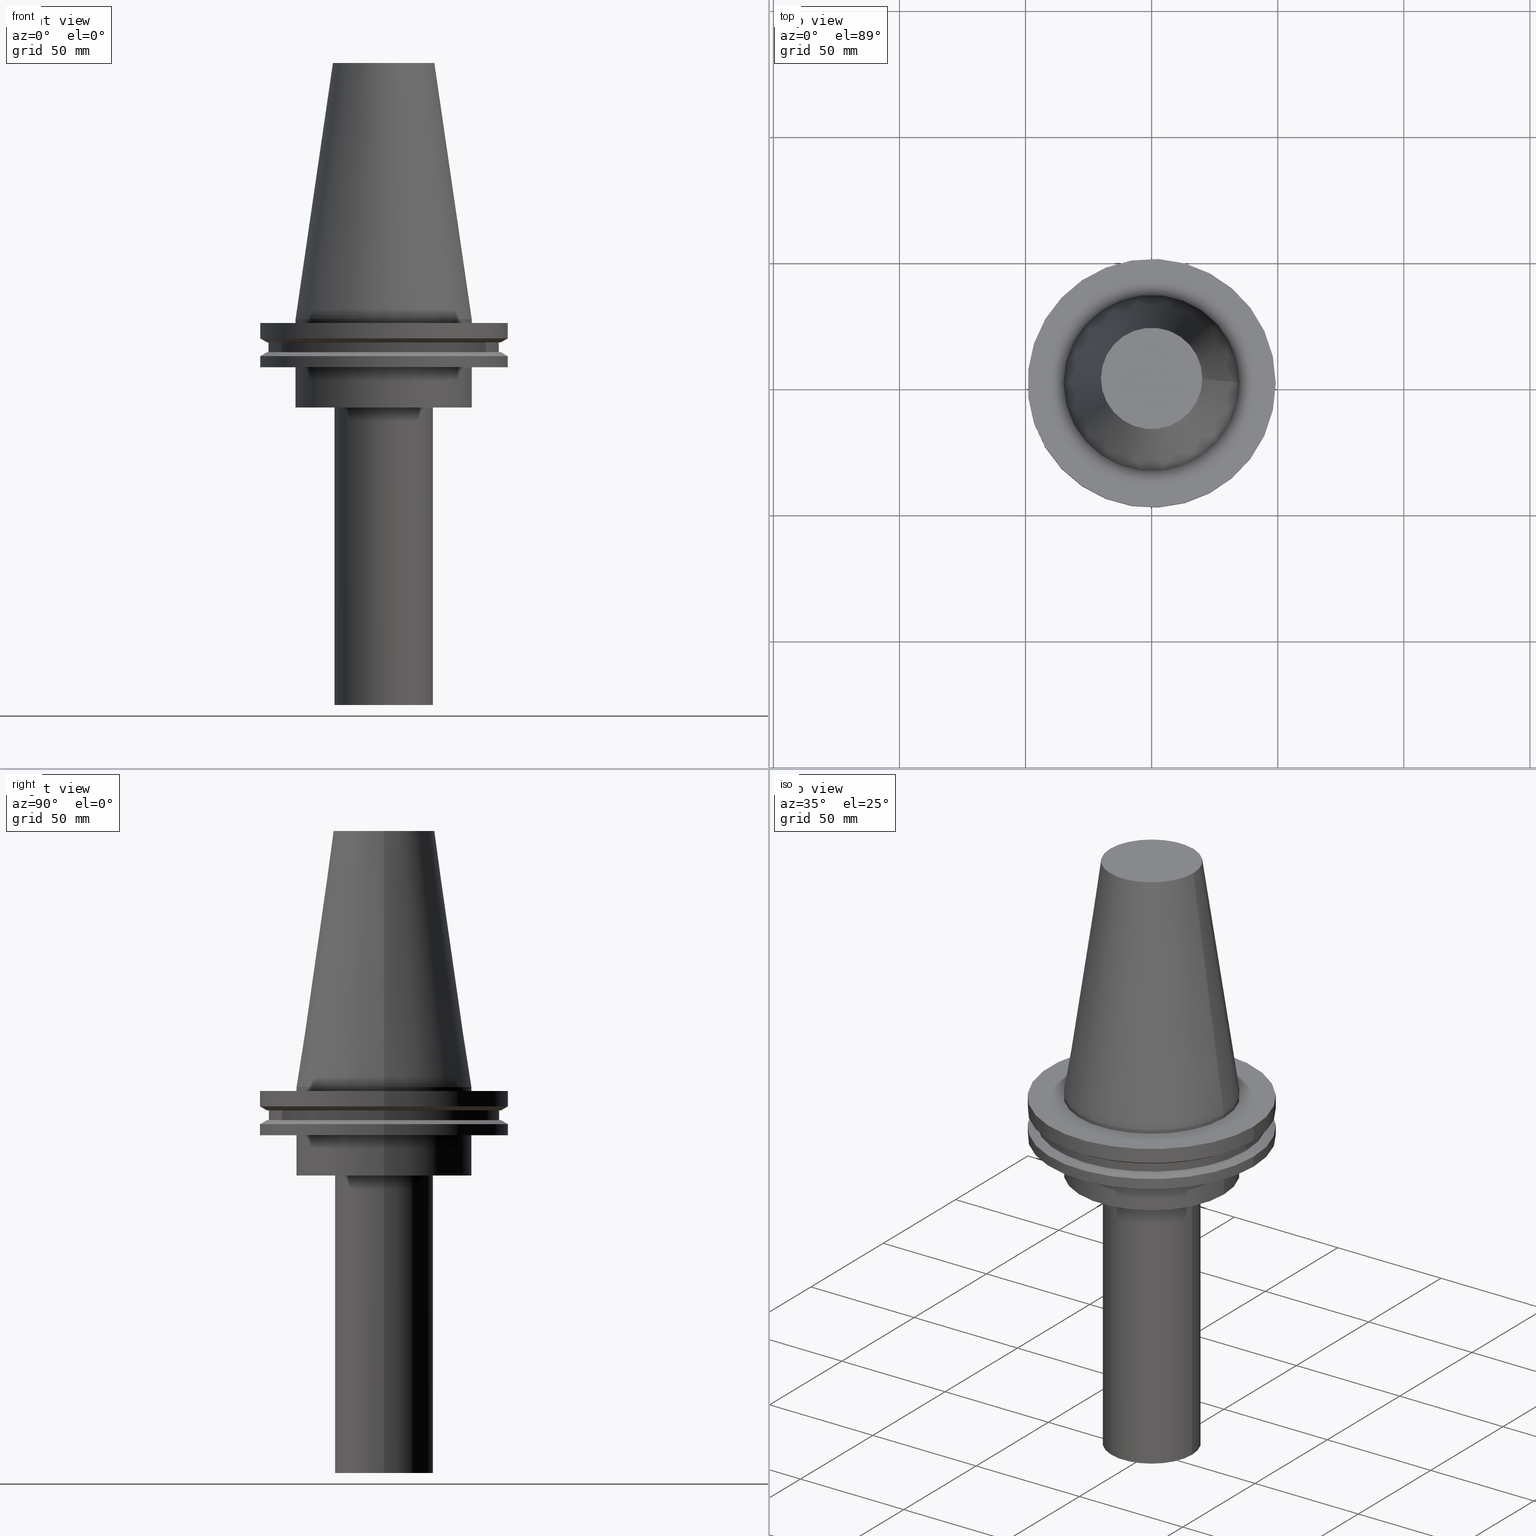
[diagram: canonical four-view strip — front | top / right | iso, engineering-drawing reading convention]
A machine part, canonical four-view strip (front | top / right | iso — engineering-drawing reading convention). The complete STEP part file that produces these views, byte-faithful:
ISO-10303-21;
HEADER;
FILE_DESCRIPTION (( 'STEP AP203' ),
    '1' );
FILE_NAME ('11.326.644.stp',
    '2022-03-09T14:51:13',
    ( '' ),
    ( '' ),
    'SwSTEP 2.0',
    'SolidWorks 2021',
    '' );
FILE_SCHEMA (( 'CONFIG_CONTROL_DESIGN' ));
ENDSEC;

DATA;
#1 = DIRECTION ( 'NONE',  ( 1.000000000000000000, 0.000000000000000000, 0.000000000000000000 ) ) ;
#2 = APPROVAL_ROLE ( '' ) ;
#3 = FACE_OUTER_BOUND ( 'NONE', #110, .T. ) ;
#4 = DIRECTION ( 'NONE',  ( -0.000000000000000000, -0.000000000000000000, 1.000000000000000000 ) ) ;
#5 = AXIS2_PLACEMENT_3D ( 'NONE', #230, #258, #315 ) ;
#6 = CYLINDRICAL_SURFACE ( 'NONE', #7, 34.92499999999999005 ) ;
#7 = AXIS2_PLACEMENT_3D ( 'NONE', #62, #250, #35 ) ;
#8 = ORIENTED_EDGE ( 'NONE', *, *, #314, .T. ) ;
#9 = LOCAL_TIME ( 8, 51, 13.00000000000000000, #97 ) ;
#10 = DIRECTION ( 'NONE',  ( -1.000000000000000000, 0.000000000000000000, -0.000000000000000000 ) ) ;
#11 = FACE_BOUND ( 'NONE', #259, .T. ) ;
#12 = AXIS2_PLACEMENT_3D ( 'NONE', #104, #199, #135 ) ;
#13 = ORIENTED_EDGE ( 'NONE', *, *, #210, .F. ) ;
#14 = CARTESIAN_POINT ( 'NONE',  ( 0.000000000000000000, 0.000000000000000000, -14.65761014474876944 ) ) ;
#15 = CIRCLE ( 'NONE', #288, 45.64500000000000313 ) ;
#16 = FACE_OUTER_BOUND ( 'NONE', #146, .T. ) ;
#17 = DIRECTION ( 'NONE',  ( -0.000000000000000000, -0.000000000000000000, 1.000000000000000000 ) ) ;
#18 = PLANE ( 'NONE',  #158 ) ;
#19 = ORIENTED_EDGE ( 'NONE', *, *, #285, .T. ) ;
#20 = PERSON_AND_ORGANIZATION ( #351, #162 ) ;
#21 = FACE_OUTER_BOUND ( 'NONE', #384, .T. ) ;
#22 = EDGE_CURVE ( 'NONE', #174, #174, #254, .T. ) ;
#23 = ORIENTED_EDGE ( 'NONE', *, *, #22, .T. ) ;
#24 = PERSON_AND_ORGANIZATION_ROLE ( 'design_owner' ) ;
#25 = VERTEX_POINT ( 'NONE', #182 ) ;
#26 = PRODUCT_DEFINITION_SHAPE ( 'NONE', 'NONE',  #98 ) ;
#27 = LOCAL_TIME ( 8, 51, 13.00000000000000000, #197 ) ;
#28 = CARTESIAN_POINT ( 'NONE',  ( 34.92499999999999005, 0.000000000000000000, -1.499999999999987566 ) ) ;
#29 = ORIENTED_EDGE ( 'NONE', *, *, #58, .T. ) ;
#30 = ADVANCED_FACE ( 'NONE', ( #105, #391 ), #78, .F. ) ;
#31 = CARTESIAN_POINT ( 'NONE',  ( 19.50000000000000000, 0.000000000000000000, -35.00000000000000000 ) ) ;
#32 = DIRECTION ( 'NONE',  ( -0.000000000000000000, -0.000000000000000000, 1.000000000000000000 ) ) ;
#33 = APPROVAL_STATUS ( 'not_yet_approved' ) ;
#34 = DIRECTION ( 'NONE',  ( 1.000000000000000000, 0.000000000000000000, 0.000000000000000000 ) ) ;
#35 = DIRECTION ( 'NONE',  ( 1.000000000000000000, 0.000000000000000000, 0.000000000000000000 ) ) ;
#36 = AXIS2_PLACEMENT_3D ( 'NONE', #73, #289, #316 ) ;
#37 = CC_DESIGN_DATE_AND_TIME_ASSIGNMENT ( #395, #119, ( #98 ) ) ;
#38 =( NAMED_UNIT ( * ) SI_UNIT ( $, .STERADIAN. ) SOLID_ANGLE_UNIT ( ) );
#39 = CARTESIAN_POINT ( 'NONE',  ( 0.000000000000000000, 49.21499999999998920, -19.04999999999999716 ) ) ;
#40 = ORIENTED_EDGE ( 'NONE', *, *, #244, .F. ) ;
#41 = ADVANCED_FACE ( 'NONE', ( #213, #55 ), #72, .T. ) ;
#42 = AXIS2_PLACEMENT_3D ( 'NONE', #203, #48, #166 ) ;
#43 = CIRCLE ( 'NONE', #144, 20.10819343178871321 ) ;
#44 = FACE_OUTER_BOUND ( 'NONE', #377, .T. ) ;
#45 = ORIENTED_EDGE ( 'NONE', *, *, #58, .F. ) ;
#46 = CARTESIAN_POINT ( 'NONE',  ( 0.000000000000000000, 0.000000000000000000, -19.04999999999999716 ) ) ;
#47 = ADVANCED_BREP_SHAPE_REPRESENTATION ( '11.326.644', ( #95, #348 ), #263 ) ;
#48 = DIRECTION ( 'NONE',  ( -0.000000000000000000, -0.000000000000000000, 1.000000000000000000 ) ) ;
#49 = DIRECTION ( 'NONE',  ( 1.000000000000000000, 0.000000000000000000, 0.000000000000000000 ) ) ;
#50 = DIRECTION ( 'NONE',  ( -0.000000000000000000, -0.000000000000000000, 1.000000000000000000 ) ) ;
#51 = ORIENTED_EDGE ( 'NONE', *, *, #103, .F. ) ;
#52 = FACE_OUTER_BOUND ( 'NONE', #293, .T. ) ;
#53 = ORIENTED_EDGE ( 'NONE', *, *, #61, .F. ) ;
#54 = CARTESIAN_POINT ( 'NONE',  ( 46.43919780457007818, 0.000000000000000000, -9.204999999999991189 ) ) ;
#55 = FACE_OUTER_BOUND ( 'NONE', #130, .T. ) ;
#56 = CONICAL_SURFACE ( 'NONE', #159, 46.43919780457007818, 1.047197551196575205 ) ;
#57 = VERTEX_POINT ( 'NONE', #211 ) ;
#58 = EDGE_CURVE ( 'NONE', #246, #246, #43, .T. ) ;
#59 = ORIENTED_EDGE ( 'NONE', *, *, #210, .T. ) ;
#60 =( LENGTH_UNIT ( ) NAMED_UNIT ( * ) SI_UNIT ( .MILLI., .METRE. ) );
#61 = EDGE_CURVE ( 'NONE', #385, #385, #349, .T. ) ;
#62 = CARTESIAN_POINT ( 'NONE',  ( 0.000000000000000000, 0.000000000000000000, 101.5999999999999943 ) ) ;
#63 = CYLINDRICAL_SURFACE ( 'NONE', #281, 19.50000000000000000 ) ;
#64 = FACE_OUTER_BOUND ( 'NONE', #354, .T. ) ;
#65 = CC_DESIGN_SECURITY_CLASSIFICATION ( #191, ( #238 ) ) ;
#66 = DIRECTION ( 'NONE',  ( -0.000000000000000000, -0.000000000000000000, 1.000000000000000000 ) ) ;
#67 = AXIS2_PLACEMENT_3D ( 'NONE', #125, #32, #369 ) ;
#68 = APPROVAL_STATUS ( 'not_yet_approved' ) ;
#69 = EDGE_LOOP ( 'NONE', ( #277 ) ) ;
#70 = AXIS2_PLACEMENT_3D ( 'NONE', #221, #308, #156 ) ;
#71 = CYLINDRICAL_SURFACE ( 'NONE', #194, 34.92499999999999716 ) ;
#72 = CONICAL_SURFACE ( 'NONE', #94, 34.92499999999999005, 0.1448138465474119452 ) ;
#73 = CARTESIAN_POINT ( 'NONE',  ( 0.000000000000000000, 0.000000000000000000, 101.5999999999999943 ) ) ;
#74 = EDGE_CURVE ( 'NONE', #140, #140, #181, .T. ) ;
#75 = DIRECTION ( 'NONE',  ( 1.000000000000000000, 0.000000000000000000, 0.000000000000000000 ) ) ;
#76 = ORIENTED_EDGE ( 'NONE', *, *, #148, .F. ) ;
#77 = DIRECTION ( 'NONE',  ( -1.000000000000000000, 0.000000000000000000, 0.000000000000000000 ) ) ;
#78 = PLANE ( 'NONE',  #280 ) ;
#79 = CALENDAR_DATE ( 2022, 9, 3 ) ;
#80 = FACE_OUTER_BOUND ( 'NONE', #342, .T. ) ;
#81 = VERTEX_POINT ( 'NONE', #31 ) ;
#82 = AXIS2_PLACEMENT_3D ( 'NONE', #260, #323, #234 ) ;
#83 = DIRECTION ( 'NONE',  ( 0.000000000000000000, -0.000000000000000000, 1.000000000000000000 ) ) ;
#84 = DIRECTION ( 'NONE',  ( -1.000000000000000000, 0.000000000000000000, -0.000000000000000000 ) ) ;
#85 = ORIENTED_EDGE ( 'NONE', *, *, #74, .T. ) ;
#86 = CC_DESIGN_PERSON_AND_ORGANIZATION_ASSIGNMENT ( #322, #173, ( #238 ) ) ;
#87 = EDGE_CURVE ( 'NONE', #332, #332, #312, .T. ) ;
#88 = DIRECTION ( 'NONE',  ( 1.000000000000000000, 0.000000000000000000, 0.000000000000000000 ) ) ;
#89 = CARTESIAN_POINT ( 'NONE',  ( 19.50000000000000000, 0.000000000000000000, -152.9999999999999716 ) ) ;
#90 = FACE_OUTER_BOUND ( 'NONE', #269, .T. ) ;
#91 = DESIGN_CONTEXT ( 'detailed design', #198, 'design' ) ;
#92 = AXIS2_PLACEMENT_3D ( 'NONE', #218, #177, #84 ) ;
#93 = DIRECTION ( 'NONE',  ( -0.000000000000000000, -0.000000000000000000, 1.000000000000000000 ) ) ;
#94 = AXIS2_PLACEMENT_3D ( 'NONE', #291, #179, #371 ) ;
#95 = MANIFOLD_SOLID_BREP ( 'CKB', #256 ) ;
#96 = CARTESIAN_POINT ( 'NONE',  ( 0.000000000000000000, 0.000000000000000000, 101.5999999999999801 ) ) ;
#97 = COORDINATED_UNIVERSAL_TIME_OFFSET ( 6, 0, .BEHIND. ) ;
#98 = PRODUCT_DEFINITION ( 'UNKNOWN', '', #238, #91 ) ;
#99 = AXIS2_PLACEMENT_3D ( 'NONE', #383, #287, #284 ) ;
#100 = DIRECTION ( 'NONE',  ( 0.000000000000000000, 0.000000000000000000, -1.000000000000000000 ) ) ;
#101 = FACE_OUTER_BOUND ( 'NONE', #382, .T. ) ;
#102 = ORIENTED_EDGE ( 'NONE', *, *, #252, .F. ) ;
#103 = EDGE_CURVE ( 'NONE', #81, #81, #345, .T. ) ;
#104 = CARTESIAN_POINT ( 'NONE',  ( 0.000000000000000000, 46.43919780457007818, -9.204999999999998295 ) ) ;
#105 = FACE_BOUND ( 'NONE', #387, .T. ) ;
#106 = DIRECTION ( 'NONE',  ( -0.000000000000000000, -0.000000000000000000, 1.000000000000000000 ) ) ;
#107 = ADVANCED_FACE ( 'NONE', ( #374, #64 ), #6, .T. ) ;
#108 = EDGE_LOOP ( 'NONE', ( #301 ) ) ;
#109 = FACE_OUTER_BOUND ( 'NONE', #160, .T. ) ;
#110 = EDGE_LOOP ( 'NONE', ( #29 ) ) ;
#111 = FACE_OUTER_BOUND ( 'NONE', #275, .T. ) ;
#112 = COORDINATED_UNIVERSAL_TIME_OFFSET ( 6, 0, .BEHIND. ) ;
#113 = AXIS2_PLACEMENT_3D ( 'NONE', #262, #133, #208 ) ;
#114 = EDGE_LOOP ( 'NONE', ( #76 ) ) ;
#115 = MECHANICAL_CONTEXT ( 'NONE', #157, 'mechanical' ) ;
#116 = CARTESIAN_POINT ( 'NONE',  ( 34.92499999999999716, 0.000000000000000000, -19.04999999999999716 ) ) ;
#117 = CONICAL_SURFACE ( 'NONE', #286, 49.21499999999998920, 1.047197551196554333 ) ;
#118 = APPROVAL ( #33, 'UNSPECIFIED' ) ;
#119 = DATE_TIME_ROLE ( 'creation_date' ) ;
#120 = CARTESIAN_POINT ( 'NONE',  ( 46.43919780457007818, 0.000000000000000000, -13.05499999999999794 ) ) ;
#121 = CC_DESIGN_APPROVAL ( #340, ( #191 ) ) ;
#122 = DIRECTION ( 'NONE',  ( 1.000000000000000000, 0.000000000000000000, 0.000000000000000000 ) ) ;
#123 = CYLINDRICAL_SURFACE ( 'NONE', #245, 49.21499999999999631 ) ;
#124 = EDGE_CURVE ( 'NONE', #57, #57, #15, .T. ) ;
#125 = CARTESIAN_POINT ( 'NONE',  ( 0.000000000000000000, 0.000000000000000000, -35.00000000000000000 ) ) ;
#126 = CARTESIAN_POINT ( 'NONE',  ( 0.000000000000000000, 0.000000000000000000, -152.9999999999999716 ) ) ;
#127 = PERSON_AND_ORGANIZATION ( #351, #162 ) ;
#128 = APPROVAL_ROLE ( '' ) ;
#129 = UNCERTAINTY_MEASURE_WITH_UNIT (LENGTH_MEASURE( 1.000000000000000082E-05 ), #60, 'distance_accuracy_value', 'NONE');
#130 = EDGE_LOOP ( 'NONE', ( #19 ) ) ;
#131 = PLANE ( 'NONE',  #113 ) ;
#132 = CIRCLE ( 'NONE', #241, 34.92499999999999005 ) ;
#133 = DIRECTION ( 'NONE',  ( 0.000000000000000000, 0.000000000000000000, -1.000000000000000000 ) ) ;
#134 = ORIENTED_EDGE ( 'NONE', *, *, #22, .F. ) ;
#135 = DIRECTION ( 'NONE',  ( 1.000000000000000000, 0.000000000000000000, 0.000000000000000000 ) ) ;
#136 = CARTESIAN_POINT ( 'NONE',  ( 0.000000000000000000, 0.000000000000000000, -9.204999999999991189 ) ) ;
#137 = ORIENTED_EDGE ( 'NONE', *, *, #320, .T. ) ;
#138 = DIRECTION ( 'NONE',  ( 0.000000000000000000, 0.000000000000000000, -1.000000000000000000 ) ) ;
#139 = COORDINATED_UNIVERSAL_TIME_OFFSET ( 6, 0, .BEHIND. ) ;
#140 = VERTEX_POINT ( 'NONE', #214 ) ;
#141 = AXIS2_PLACEMENT_3D ( 'NONE', #193, #336, #306 ) ;
#142 = EDGE_LOOP ( 'NONE', ( #59 ) ) ;
#143 = DIRECTION ( 'NONE',  ( 0.000000000000000000, 0.000000000000000000, 1.000000000000000000 ) ) ;
#144 = AXIS2_PLACEMENT_3D ( 'NONE', #96, #93, #305 ) ;
#145 = CARTESIAN_POINT ( 'NONE',  ( 0.000000000000000000, 0.000000000000000000, 0.000000000000000000 ) ) ;
#146 = EDGE_LOOP ( 'NONE', ( #53 ) ) ;
#147 = VERTEX_POINT ( 'NONE', #276 ) ;
#148 = EDGE_CURVE ( 'NONE', #325, #325, #327, .T. ) ;
#149 = EDGE_LOOP ( 'NONE', ( #185 ) ) ;
#150 = PRODUCT_RELATED_PRODUCT_CATEGORY ( 'detail', '', ( #386 ) ) ;
#151 = PERSON_AND_ORGANIZATION ( #351, #162 ) ;
#152 = VERTEX_POINT ( 'NONE', #28 ) ;
#153 = APPROVAL_DATE_TIME ( #186, #118 ) ;
#154 = DIRECTION ( 'NONE',  ( -0.000000000000000000, -0.000000000000000000, 1.000000000000000000 ) ) ;
#155 = LOCAL_TIME ( 8, 51, 13.00000000000000000, #139 ) ;
#156 = DIRECTION ( 'NONE',  ( 1.000000000000000000, 0.000000000000000000, 0.000000000000000000 ) ) ;
#157 = APPLICATION_CONTEXT ( 'configuration controlled 3d designs of mechanical parts and assemblies' ) ;
#158 = AXIS2_PLACEMENT_3D ( 'NONE', #318, #100, #10 ) ;
#159 = AXIS2_PLACEMENT_3D ( 'NONE', #292, #106, #283 ) ;
#160 = EDGE_LOOP ( 'NONE', ( #317 ) ) ;
#161 = FACE_OUTER_BOUND ( 'NONE', #204, .T. ) ;
#162 = ORGANIZATION ( 'UNSPECIFIED', 'UNSPECIFIED', '' ) ;
#163 = FACE_BOUND ( 'NONE', #324, .T. ) ;
#164 = FACE_OUTER_BOUND ( 'NONE', #114, .T. ) ;
#165 = ADVANCED_FACE ( 'NONE', ( #161, #188 ), #366, .F. ) ;
#166 = DIRECTION ( 'NONE',  ( 1.000000000000000000, 0.000000000000000000, 0.000000000000000000 ) ) ;
#167 = CC_DESIGN_PERSON_AND_ORGANIZATION_ASSIGNMENT ( #294, #24, ( #386 ) ) ;
#168 = ORIENTED_EDGE ( 'NONE', *, *, #87, .F. ) ;
#169 = CC_DESIGN_APPROVAL ( #118, ( #98 ) ) ;
#170 = DIRECTION ( 'NONE',  ( 1.000000000000000000, 0.000000000000000000, 0.000000000000000000 ) ) ;
#171 = EDGE_LOOP ( 'NONE', ( #272 ) ) ;
#172 = CC_DESIGN_PERSON_AND_ORGANIZATION_ASSIGNMENT ( #20, #307, ( #238 ) ) ;
#173 = PERSON_AND_ORGANIZATION_ROLE ( 'creator' ) ;
#174 = VERTEX_POINT ( 'NONE', #120 ) ;
#175 = CIRCLE ( 'NONE', #5, 49.21499999999998920 ) ;
#176 = CC_DESIGN_PERSON_AND_ORGANIZATION_ASSIGNMENT ( #151, #278, ( #98 ) ) ;
#177 = DIRECTION ( 'NONE',  ( 0.000000000000000000, 0.000000000000000000, -1.000000000000000000 ) ) ;
#178 = AXIS2_PLACEMENT_3D ( 'NONE', #39, #394, #205 ) ;
#179 = DIRECTION ( 'NONE',  ( 0.000000000000000000, 0.000000000000000000, -1.000000000000000000 ) ) ;
#180 = CARTESIAN_POINT ( 'NONE',  ( 0.000000000000000000, 0.000000000000000000, 0.000000000000000000 ) ) ;
#181 = CIRCLE ( 'NONE', #364, 49.21499999999998920 ) ;
#182 = CARTESIAN_POINT ( 'NONE',  ( 49.21499999999999631, 0.000000000000000000, -1.499999999999987566 ) ) ;
#183 = ADVANCED_FACE ( 'NONE', ( #164, #381 ), #56, .T. ) ;
#184 = CC_DESIGN_DATE_AND_TIME_ASSIGNMENT ( #225, #192, ( #191 ) ) ;
#185 = ORIENTED_EDGE ( 'NONE', *, *, #148, .T. ) ;
#186 = DATE_AND_TIME ( #331, #319 ) ;
#187 = VERTEX_POINT ( 'NONE', #243 ) ;
#188 = FACE_BOUND ( 'NONE', #206, .T. ) ;
#189 = CARTESIAN_POINT ( 'NONE',  ( 0.000000000000000000, 0.000000000000000000, 101.5999999999999943 ) ) ;
#190 = ADVANCED_FACE ( 'NONE', ( #163, #201 ), #117, .T. ) ;
#191 = SECURITY_CLASSIFICATION ( '', '', #337 ) ;
#192 = DATE_TIME_ROLE ( 'classification_date' ) ;
#193 = CARTESIAN_POINT ( 'NONE',  ( 0.000000000000000000, 0.000000000000000000, -7.602389855251287187 ) ) ;
#194 = AXIS2_PLACEMENT_3D ( 'NONE', #378, #50, #170 ) ;
#195 = PERSON_AND_ORGANIZATION ( #351, #162 ) ;
#196 = EDGE_CURVE ( 'NONE', #368, #368, #341, .T. ) ;
#197 = COORDINATED_UNIVERSAL_TIME_OFFSET ( 6, 0, .BEHIND. ) ;
#198 = APPLICATION_CONTEXT ( 'configuration controlled 3d designs of mechanical parts and assemblies' ) ;
#199 = DIRECTION ( 'NONE',  ( 0.000000000000000000, -0.000000000000000000, 1.000000000000000000 ) ) ;
#200 = AXIS2_PLACEMENT_3D ( 'NONE', #126, #66, #122 ) ;
#201 = FACE_OUTER_BOUND ( 'NONE', #142, .T. ) ;
#202 = ADVANCED_FACE ( 'NONE', ( #350, #313 ), #131, .F. ) ;
#203 = CARTESIAN_POINT ( 'NONE',  ( 0.000000000000000000, 0.000000000000000000, -35.00000000000000000 ) ) ;
#204 = EDGE_LOOP ( 'NONE', ( #329 ) ) ;
#205 = DIRECTION ( 'NONE',  ( 1.000000000000000000, 0.000000000000000000, 0.000000000000000000 ) ) ;
#206 = EDGE_LOOP ( 'NONE', ( #8 ) ) ;
#207 = APPROVAL_DATE_TIME ( #270, #360 ) ;
#208 = DIRECTION ( 'NONE',  ( -1.000000000000000000, 0.000000000000000000, -0.000000000000000000 ) ) ;
#209 = ORIENTED_EDGE ( 'NONE', *, *, #244, .T. ) ;
#210 = EDGE_CURVE ( 'NONE', #302, #302, #175, .T. ) ;
#211 = CARTESIAN_POINT ( 'NONE',  ( 45.64500000000000313, 0.000000000000000000, -13.05499999999999794 ) ) ;
#212 = CIRCLE ( 'NONE', #82, 34.92499999999999005 ) ;
#213 = FACE_BOUND ( 'NONE', #215, .T. ) ;
#214 = CARTESIAN_POINT ( 'NONE',  ( 49.21499999999998920, 0.000000000000000000, -19.04999999999999716 ) ) ;
#215 = EDGE_LOOP ( 'NONE', ( #45 ) ) ;
#216 = APPROVAL_ROLE ( '' ) ;
#217 = APPROVAL_PERSON_ORGANIZATION ( #127, #340, #128 ) ;
#218 = CARTESIAN_POINT ( 'NONE',  ( 0.000000000000000000, 20.10819343178871321, 101.5999999999999943 ) ) ;
#219 = DIRECTION ( 'NONE',  ( -0.000000000000000000, -0.000000000000000000, 1.000000000000000000 ) ) ;
#220 = AXIS2_PLACEMENT_3D ( 'NONE', #46, #232, #75 ) ;
#221 = CARTESIAN_POINT ( 'NONE',  ( 0.000000000000000000, 0.000000000000000000, -9.204999999999991189 ) ) ;
#222 = ADVANCED_FACE ( 'NONE', ( #11, #80 ), #18, .F. ) ;
#223 = CARTESIAN_POINT ( 'NONE',  ( 0.000000000000000000, 0.000000000000000000, -13.05499999999999794 ) ) ;
#224 = APPROVAL_DATE_TIME ( #309, #340 ) ;
#225 = DATE_AND_TIME ( #253, #27 ) ;
#226 =( NAMED_UNIT ( * ) PLANE_ANGLE_UNIT ( ) SI_UNIT ( $, .RADIAN. ) );
#227 = CIRCLE ( 'NONE', #42, 34.92499999999999716 ) ;
#228 = ORIENTED_EDGE ( 'NONE', *, *, #320, .F. ) ;
#229 = AXIS2_PLACEMENT_3D ( 'NONE', #136, #268, #375 ) ;
#230 = CARTESIAN_POINT ( 'NONE',  ( 0.000000000000000000, 0.000000000000000000, -14.65761014474876944 ) ) ;
#231 = FACE_BOUND ( 'NONE', #69, .T. ) ;
#232 = DIRECTION ( 'NONE',  ( -0.000000000000000000, -0.000000000000000000, 1.000000000000000000 ) ) ;
#233 = EDGE_LOOP ( 'NONE', ( #40 ) ) ;
#234 = DIRECTION ( 'NONE',  ( 1.000000000000000000, 0.000000000000000000, 0.000000000000000000 ) ) ;
#235 = ORIENTED_EDGE ( 'NONE', *, *, #61, .T. ) ;
#236 = COORDINATED_UNIVERSAL_TIME_OFFSET ( 6, 0, .BEHIND. ) ;
#237 = DIRECTION ( 'NONE',  ( -0.000000000000000000, -0.000000000000000000, 1.000000000000000000 ) ) ;
#238 = PRODUCT_DEFINITION_FORMATION_WITH_SPECIFIED_SOURCE ( 'ANY', '', #386, .NOT_KNOWN. ) ;
#239 = EDGE_LOOP ( 'NONE', ( #23 ) ) ;
#240 = CALENDAR_DATE ( 2022, 9, 3 ) ;
#241 = AXIS2_PLACEMENT_3D ( 'NONE', #380, #237, #355 ) ;
#242 = CARTESIAN_POINT ( 'NONE',  ( 0.000000000000000000, 34.92499999999999716, -35.00000000000000000 ) ) ;
#243 = CARTESIAN_POINT ( 'NONE',  ( 34.92499999999999716, 0.000000000000000000, -35.00000000000000000 ) ) ;
#244 = EDGE_CURVE ( 'NONE', #25, #25, #376, .T. ) ;
#245 = AXIS2_PLACEMENT_3D ( 'NONE', #189, #154, #282 ) ;
#246 = VERTEX_POINT ( 'NONE', #274 ) ;
#247 = DIRECTION ( 'NONE',  ( 1.000000000000000000, 0.000000000000000000, 0.000000000000000000 ) ) ;
#248 = PERSON_AND_ORGANIZATION_ROLE ( 'classification_officer' ) ;
#249 = PLANE ( 'NONE',  #92 ) ;
#250 = DIRECTION ( 'NONE',  ( -0.000000000000000000, -0.000000000000000000, 1.000000000000000000 ) ) ;
#251 = DIRECTION ( 'NONE',  ( -0.000000000000000000, -0.000000000000000000, 1.000000000000000000 ) ) ;
#252 = EDGE_CURVE ( 'NONE', #152, #152, #212, .T. ) ;
#253 = CALENDAR_DATE ( 2022, 9, 3 ) ;
#254 = CIRCLE ( 'NONE', #304, 46.43919780457007818 ) ;
#255 = CARTESIAN_POINT ( 'NONE',  ( 0.000000000000000000, 0.000000000000000000, -19.04999999999999716 ) ) ;
#256 = CLOSED_SHELL ( 'NONE', ( #41, #361, #30, #261, #165, #388, #190, #202, #310, #264, #183, #343, #222, #107, #379, #334 ) ) ;
#257 = AXIS2_PLACEMENT_3D ( 'NONE', #303, #295, #34 ) ;
#258 = DIRECTION ( 'NONE',  ( -0.000000000000000000, -0.000000000000000000, 1.000000000000000000 ) ) ;
#259 = EDGE_LOOP ( 'NONE', ( #102 ) ) ;
#260 = CARTESIAN_POINT ( 'NONE',  ( 0.000000000000000000, 0.000000000000000000, -1.499999999999987566 ) ) ;
#261 = ADVANCED_FACE ( 'NONE', ( #109, #344 ), #71, .T. ) ;
#262 = CARTESIAN_POINT ( 'NONE',  ( 0.000000000000000000, 45.64500000000000313, -13.05499999999999794 ) ) ;
#263 =( GEOMETRIC_REPRESENTATION_CONTEXT ( 3 ) GLOBAL_UNCERTAINTY_ASSIGNED_CONTEXT ( ( #129 ) ) GLOBAL_UNIT_ASSIGNED_CONTEXT ( ( #60, #226, #38 ) ) REPRESENTATION_CONTEXT ( 'NONE', 'WORKASPACE' ) );
#264 = ADVANCED_FACE ( 'NONE', ( #101, #231 ), #353, .F. ) ;
#265 = CC_DESIGN_PERSON_AND_ORGANIZATION_ASSIGNMENT ( #195, #248, ( #191 ) ) ;
#266 = PLANE ( 'NONE',  #257 ) ;
#267 = ORIENTED_EDGE ( 'NONE', *, *, #196, .F. ) ;
#268 = DIRECTION ( 'NONE',  ( -0.000000000000000000, -0.000000000000000000, 1.000000000000000000 ) ) ;
#269 = EDGE_LOOP ( 'NONE', ( #85 ) ) ;
#270 = DATE_AND_TIME ( #79, #356 ) ;
#271 = DIRECTION ( 'NONE',  ( 1.000000000000000000, 0.000000000000000000, 0.000000000000000000 ) ) ;
#272 = ORIENTED_EDGE ( 'NONE', *, *, #285, .F. ) ;
#273 = APPLICATION_PROTOCOL_DEFINITION ( 'international standard', 'config_control_design', 1994, #198 ) ;
#274 = CARTESIAN_POINT ( 'NONE',  ( 20.10819343178871321, 0.000000000000000000, 101.5999999999999801 ) ) ;
#275 = EDGE_LOOP ( 'NONE', ( #13 ) ) ;
#276 = CARTESIAN_POINT ( 'NONE',  ( 34.92499999999999005, 0.000000000000000000, 0.000000000000000000 ) ) ;
#277 = ORIENTED_EDGE ( 'NONE', *, *, #87, .T. ) ;
#278 = PERSON_AND_ORGANIZATION_ROLE ( 'creator' ) ;
#279 = PERSON_AND_ORGANIZATION ( #351, #162 ) ;
#280 = AXIS2_PLACEMENT_3D ( 'NONE', #242, #83, #363 ) ;
#281 = AXIS2_PLACEMENT_3D ( 'NONE', #145, #219, #1 ) ;
#282 = DIRECTION ( 'NONE',  ( 1.000000000000000000, 0.000000000000000000, 0.000000000000000000 ) ) ;
#283 = DIRECTION ( 'NONE',  ( 1.000000000000000000, 0.000000000000000000, 0.000000000000000000 ) ) ;
#284 = DIRECTION ( 'NONE',  ( 1.000000000000000000, 0.000000000000000000, 0.000000000000000000 ) ) ;
#285 = EDGE_CURVE ( 'NONE', #147, #147, #132, .T. ) ;
#286 = AXIS2_PLACEMENT_3D ( 'NONE', #14, #138, #77 ) ;
#287 = DIRECTION ( 'NONE',  ( -0.000000000000000000, -0.000000000000000000, 1.000000000000000000 ) ) ;
#288 = AXIS2_PLACEMENT_3D ( 'NONE', #223, #251, #373 ) ;
#289 = DIRECTION ( 'NONE',  ( -0.000000000000000000, -0.000000000000000000, 1.000000000000000000 ) ) ;
#290 = CC_DESIGN_APPROVAL ( #360, ( #238 ) ) ;
#291 = CARTESIAN_POINT ( 'NONE',  ( 0.000000000000000000, 0.000000000000000000, 0.000000000000000000 ) ) ;
#292 = CARTESIAN_POINT ( 'NONE',  ( 0.000000000000000000, 0.000000000000000000, -9.204999999999991189 ) ) ;
#293 = EDGE_LOOP ( 'NONE', ( #168 ) ) ;
#294 = PERSON_AND_ORGANIZATION ( #351, #162 ) ;
#295 = DIRECTION ( 'NONE',  ( 0.000000000000000000, -0.000000000000000000, 1.000000000000000000 ) ) ;
#296 = EDGE_LOOP ( 'NONE', ( #228 ) ) ;
#297 = CARTESIAN_POINT ( 'NONE',  ( 49.21499999999998920, 0.000000000000000000, -14.65761014474876944 ) ) ;
#298 = EDGE_LOOP ( 'NONE', ( #137 ) ) ;
#299 = CIRCLE ( 'NONE', #220, 34.92499999999999716 ) ;
#300 = CYLINDRICAL_SURFACE ( 'NONE', #339, 49.21499999999998920 ) ;
#301 = ORIENTED_EDGE ( 'NONE', *, *, #196, .T. ) ;
#302 = VERTEX_POINT ( 'NONE', #297 ) ;
#303 = CARTESIAN_POINT ( 'NONE',  ( 0.000000000000000000, 19.50000000000000000, -152.9999999999999716 ) ) ;
#304 = AXIS2_PLACEMENT_3D ( 'NONE', #357, #17, #49 ) ;
#305 = DIRECTION ( 'NONE',  ( 1.000000000000000000, 0.000000000000000000, 0.000000000000000000 ) ) ;
#306 = DIRECTION ( 'NONE',  ( 1.000000000000000000, 0.000000000000000000, 0.000000000000000000 ) ) ;
#307 = PERSON_AND_ORGANIZATION_ROLE ( 'design_supplier' ) ;
#308 = DIRECTION ( 'NONE',  ( -0.000000000000000000, -0.000000000000000000, 1.000000000000000000 ) ) ;
#309 = DATE_AND_TIME ( #338, #9 ) ;
#310 = ADVANCED_FACE ( 'NONE', ( #52, #44 ), #347, .T. ) ;
#311 = ORIENTED_EDGE ( 'NONE', *, *, #103, .T. ) ;
#312 = CIRCLE ( 'NONE', #70, 45.64500000000000313 ) ;
#313 = FACE_OUTER_BOUND ( 'NONE', #239, .T. ) ;
#314 = EDGE_CURVE ( 'NONE', #393, #393, #299, .T. ) ;
#315 = DIRECTION ( 'NONE',  ( 1.000000000000000000, 0.000000000000000000, 0.000000000000000000 ) ) ;
#316 = DIRECTION ( 'NONE',  ( 1.000000000000000000, 0.000000000000000000, 0.000000000000000000 ) ) ;
#317 = ORIENTED_EDGE ( 'NONE', *, *, #314, .F. ) ;
#318 = CARTESIAN_POINT ( 'NONE',  ( 0.000000000000000000, 49.21499999999999631, -1.499999999999992895 ) ) ;
#319 = LOCAL_TIME ( 8, 51, 13.00000000000000000, #112 ) ;
#320 = EDGE_CURVE ( 'NONE', #187, #187, #227, .T. ) ;
#321 = ORIENTED_EDGE ( 'NONE', *, *, #124, .T. ) ;
#322 = PERSON_AND_ORGANIZATION ( #351, #162 ) ;
#323 = DIRECTION ( 'NONE',  ( -0.000000000000000000, -0.000000000000000000, 1.000000000000000000 ) ) ;
#324 = EDGE_LOOP ( 'NONE', ( #134 ) ) ;
#325 = VERTEX_POINT ( 'NONE', #390 ) ;
#326 = ORIENTED_EDGE ( 'NONE', *, *, #124, .F. ) ;
#327 = CIRCLE ( 'NONE', #141, 49.21500000000000341 ) ;
#328 = DIRECTION ( 'NONE',  ( -0.000000000000000000, -0.000000000000000000, 1.000000000000000000 ) ) ;
#329 = ORIENTED_EDGE ( 'NONE', *, *, #74, .F. ) ;
#330 = APPROVAL_PERSON_ORGANIZATION ( #389, #118, #216 ) ;
#331 = CALENDAR_DATE ( 2022, 9, 3 ) ;
#332 = VERTEX_POINT ( 'NONE', #358 ) ;
#333 = CARTESIAN_POINT ( 'NONE',  ( 0.000000000000000000, 0.000000000000000000, 101.5999999999999943 ) ) ;
#334 = ADVANCED_FACE ( 'NONE', ( #16 ), #266, .F. ) ;
#335 = APPROVAL_PERSON_ORGANIZATION ( #279, #360, #2 ) ;
#336 = DIRECTION ( 'NONE',  ( -0.000000000000000000, -0.000000000000000000, 1.000000000000000000 ) ) ;
#337 = SECURITY_CLASSIFICATION_LEVEL ( 'unclassified' ) ;
#338 = CALENDAR_DATE ( 2022, 9, 3 ) ;
#339 = AXIS2_PLACEMENT_3D ( 'NONE', #333, #328, #271 ) ;
#340 = APPROVAL ( #68, 'UNSPECIFIED' ) ;
#341 = CIRCLE ( 'NONE', #229, 46.43919780457007818 ) ;
#342 = EDGE_LOOP ( 'NONE', ( #209 ) ) ;
#343 = ADVANCED_FACE ( 'NONE', ( #362, #365 ), #123, .T. ) ;
#344 = FACE_OUTER_BOUND ( 'NONE', #298, .T. ) ;
#345 = CIRCLE ( 'NONE', #67, 19.50000000000000000 ) ;
#346 = ORIENTED_EDGE ( 'NONE', *, *, #252, .T. ) ;
#347 = CYLINDRICAL_SURFACE ( 'NONE', #36, 45.64500000000000313 ) ;
#348 = AXIS2_PLACEMENT_3D ( 'NONE', #180, #143, #88 ) ;
#349 = CIRCLE ( 'NONE', #200, 19.50000000000000000 ) ;
#350 = FACE_BOUND ( 'NONE', #359, .T. ) ;
#351 = PERSON ( 'UNSPECIFIED', 'UNSPECIFIED', 'UNSPECIFIED', ('UNSPECIFIED'), ('UNSPECIFIED'), ('UNSPECIFIED') ) ;
#352 = EDGE_LOOP ( 'NONE', ( #235 ) ) ;
#353 = PLANE ( 'NONE',  #12 ) ;
#354 = EDGE_LOOP ( 'NONE', ( #346 ) ) ;
#355 = DIRECTION ( 'NONE',  ( 1.000000000000000000, 0.000000000000000000, 0.000000000000000000 ) ) ;
#356 = LOCAL_TIME ( 8, 51, 13.00000000000000000, #236 ) ;
#357 = CARTESIAN_POINT ( 'NONE',  ( 0.000000000000000000, 0.000000000000000000, -13.05499999999999794 ) ) ;
#358 = CARTESIAN_POINT ( 'NONE',  ( 45.64500000000000313, 0.000000000000000000, -9.204999999999991189 ) ) ;
#359 = EDGE_LOOP ( 'NONE', ( #326 ) ) ;
#360 = APPROVAL ( #367, 'UNSPECIFIED' ) ;
#361 = ADVANCED_FACE ( 'NONE', ( #3 ), #249, .F. ) ;
#362 = FACE_OUTER_BOUND ( 'NONE', #233, .T. ) ;
#363 = DIRECTION ( 'NONE',  ( 1.000000000000000000, 0.000000000000000000, 0.000000000000000000 ) ) ;
#364 = AXIS2_PLACEMENT_3D ( 'NONE', #255, #4, #247 ) ;
#365 = FACE_OUTER_BOUND ( 'NONE', #149, .T. ) ;
#366 = PLANE ( 'NONE',  #178 ) ;
#367 = APPROVAL_STATUS ( 'not_yet_approved' ) ;
#368 = VERTEX_POINT ( 'NONE', #54 ) ;
#369 = DIRECTION ( 'NONE',  ( 1.000000000000000000, 0.000000000000000000, 0.000000000000000000 ) ) ;
#370 = FACE_OUTER_BOUND ( 'NONE', #352, .T. ) ;
#371 = DIRECTION ( 'NONE',  ( -1.000000000000000000, 0.000000000000000000, 0.000000000000000000 ) ) ;
#372 = SHAPE_DEFINITION_REPRESENTATION ( #26, #47 ) ;
#373 = DIRECTION ( 'NONE',  ( 1.000000000000000000, 0.000000000000000000, 0.000000000000000000 ) ) ;
#374 = FACE_OUTER_BOUND ( 'NONE', #171, .T. ) ;
#375 = DIRECTION ( 'NONE',  ( 1.000000000000000000, 0.000000000000000000, 0.000000000000000000 ) ) ;
#376 = CIRCLE ( 'NONE', #99, 49.21499999999999631 ) ;
#377 = EDGE_LOOP ( 'NONE', ( #321 ) ) ;
#378 = CARTESIAN_POINT ( 'NONE',  ( 0.000000000000000000, 0.000000000000000000, 101.5999999999999943 ) ) ;
#379 = ADVANCED_FACE ( 'NONE', ( #21, #370 ), #63, .T. ) ;
#380 = CARTESIAN_POINT ( 'NONE',  ( 0.000000000000000000, 0.000000000000000000, 0.000000000000000000 ) ) ;
#381 = FACE_BOUND ( 'NONE', #108, .T. ) ;
#382 = EDGE_LOOP ( 'NONE', ( #267 ) ) ;
#383 = CARTESIAN_POINT ( 'NONE',  ( 0.000000000000000000, 0.000000000000000000, -1.499999999999987566 ) ) ;
#384 = EDGE_LOOP ( 'NONE', ( #51 ) ) ;
#385 = VERTEX_POINT ( 'NONE', #89 ) ;
#386 = PRODUCT ( '11.326.644', '11.326.644', '', ( #115 ) ) ;
#387 = EDGE_LOOP ( 'NONE', ( #311 ) ) ;
#388 = ADVANCED_FACE ( 'NONE', ( #111, #90 ), #300, .T. ) ;
#389 = PERSON_AND_ORGANIZATION ( #351, #162 ) ;
#390 = CARTESIAN_POINT ( 'NONE',  ( 49.21500000000000341, 0.000000000000000000, -7.602389855251287187 ) ) ;
#391 = FACE_OUTER_BOUND ( 'NONE', #296, .T. ) ;
#392 = APPLICATION_PROTOCOL_DEFINITION ( 'international standard', 'config_control_design', 1994, #157 ) ;
#393 = VERTEX_POINT ( 'NONE', #116 ) ;
#394 = DIRECTION ( 'NONE',  ( 0.000000000000000000, -0.000000000000000000, 1.000000000000000000 ) ) ;
#395 = DATE_AND_TIME ( #240, #155 ) ;
ENDSEC;
END-ISO-10303-21;
